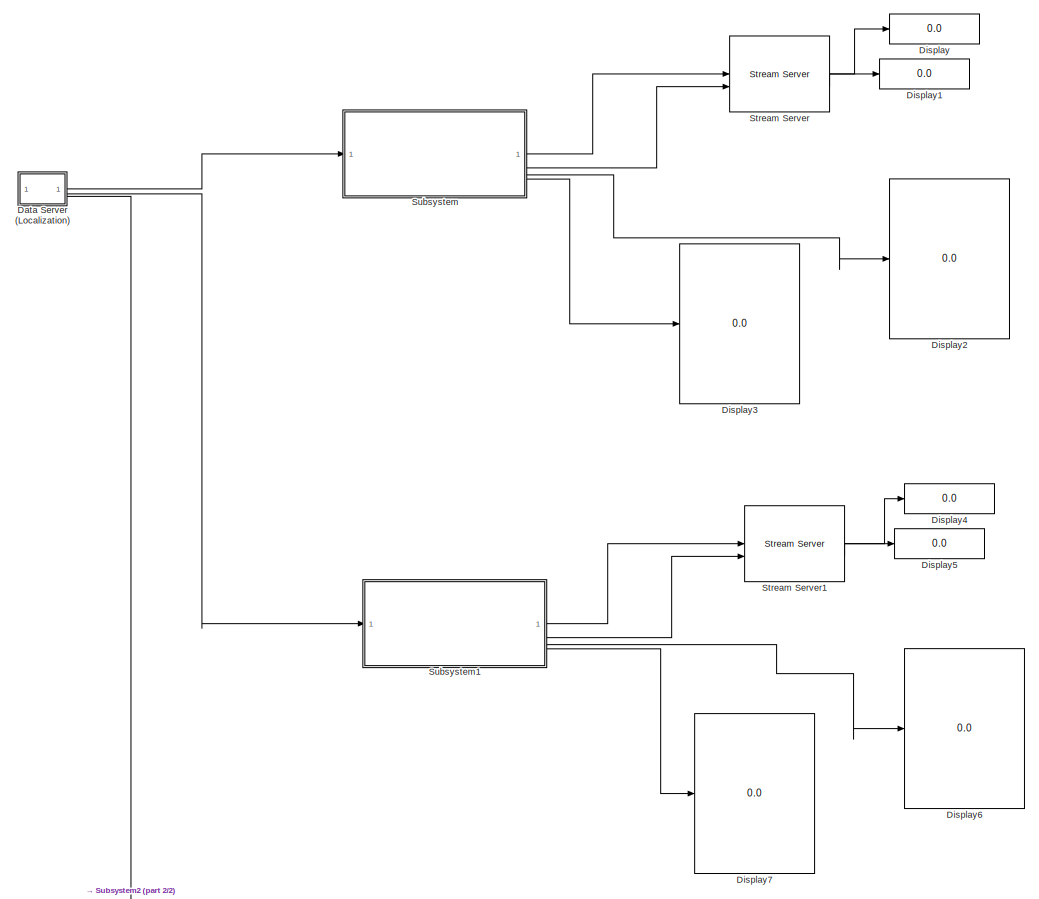
[diagram: root canvas - part 1/2, full width, top band]
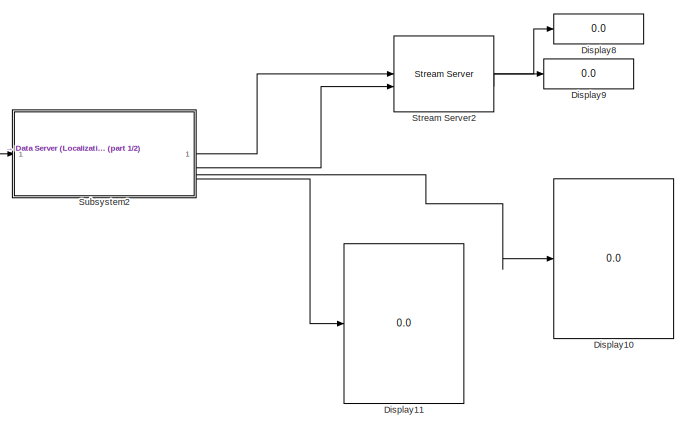
[diagram: root canvas - part 2/2, bottom right region]
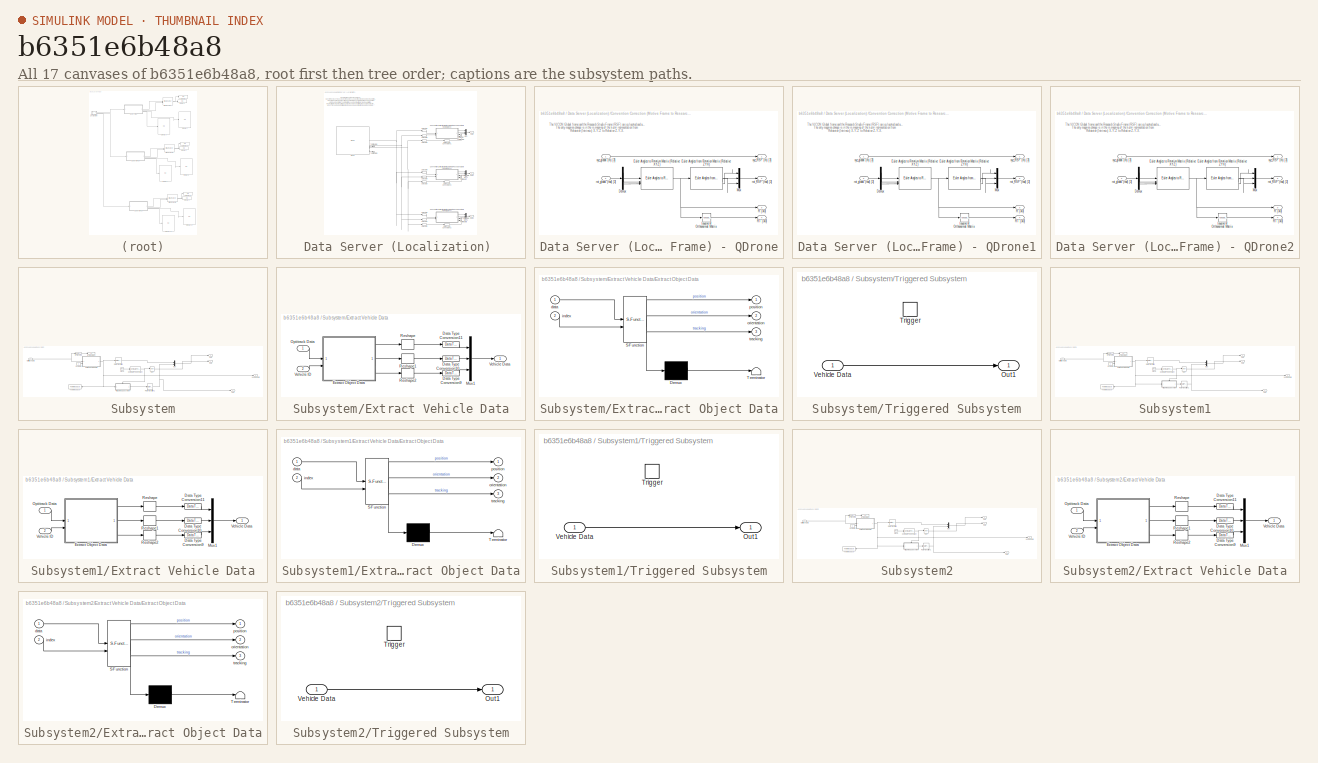
[diagram: thumbnail index - all 17 canvases of the model, root first then tree order]
MODEL slx_b6351e6b48a8
KIND model
CONFIG AbsTol = auto
CONFIG EnableMultiTasking = on
CONFIG FixedStep = 0.001
CONFIG InitFcn = %set_param('MS_FR/MISSION SERVER QDRONE POSITION CONTROL/Trajectory Enable', 'sw', '0' )\n%set_param('MS_FR/MISSION SERVER QDRONE POSITION CONTROL/Command Enable', 'sw', '0' )
CONFIG MaxStep = auto
CONFIG MinStep = auto
CONFIG RelTol = 1e-3
CONFIG SampleTimeConstraint = Unconstrained
CONFIG SolverName = ode2
CONFIG StartTime = 0.0
CONFIG StopTime = inf
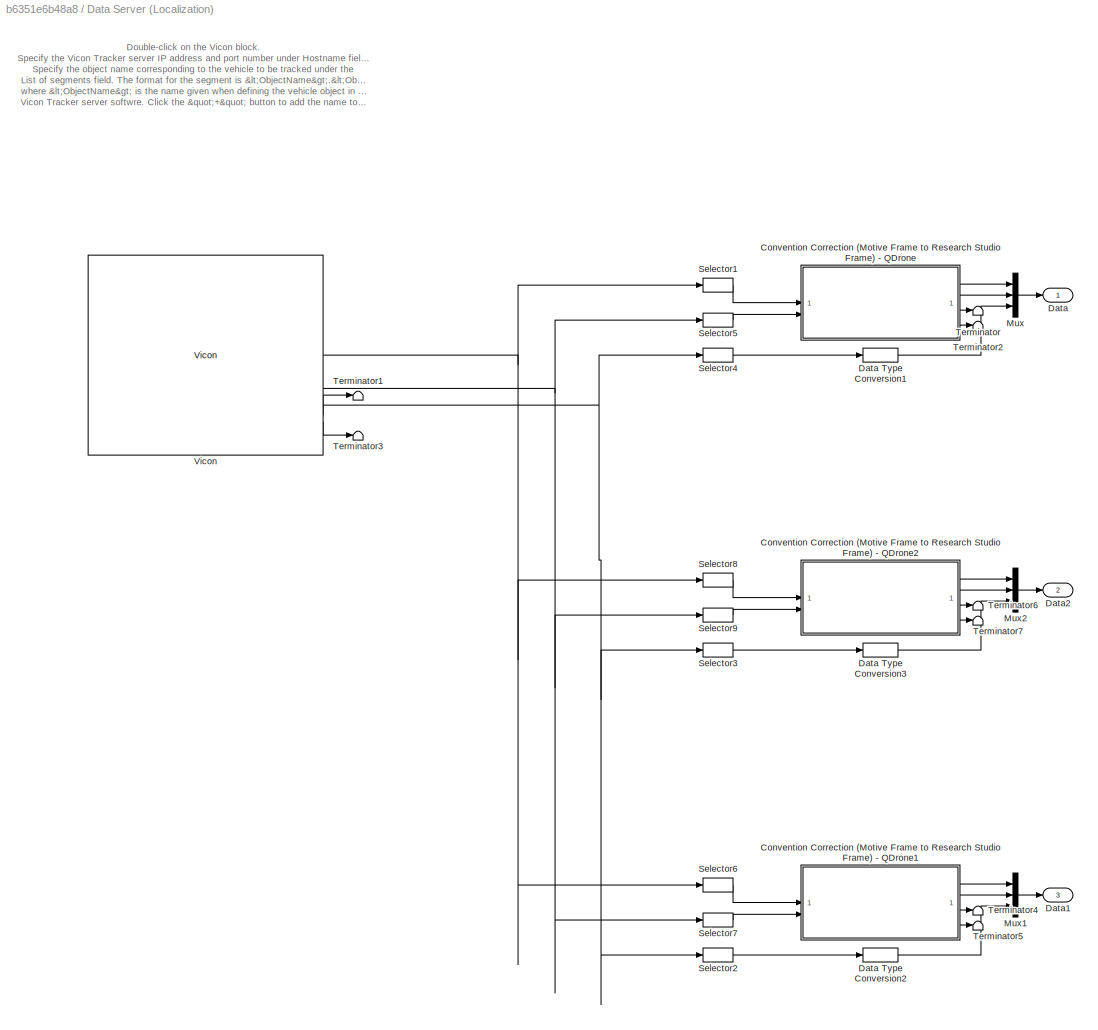
BLOCK [SubSystem] Data Server (Localization) 
  NameLocation = top
BLOCK [SubSystem] Data Server (Localization) /Convention Correction (Motive Frame to Research Studio Frame) - QDrone
  NameLocation = top
BLOCK [Demux] Data Server (Localization) /Convention Correction (Motive Frame to Research Studio Frame) - QDrone/Demux
  Outputs = 3
BLOCK [Reference] Data Server (Localization) /Convention Correction (Motive Frame to Research Studio Frame) - QDrone/Euler Angles from Rotation Matrix (Relative ZYX)  REF=quarc_library/Math Operations/Matrices/Euler Angles from
Rotation Matrix
  SourceBlock = quarc_library/Math Operations/Matrices/Euler Angles from\nRotation Matrix
  SourceProductName = QUARC Targets
  SourceType = Euler Angles from Rotation Matrix
BLOCK [Reference] Data Server (Localization) /Convention Correction (Motive Frame to Research Studio Frame) - QDrone/Euler Angles to Rotation Matrix (Relative XYZ)  REF=quarc_library/Math Operations/Matrices/Euler Angles to
Rotation Matrix
  SourceBlock = quarc_library/Math Operations/Matrices/Euler Angles to\nRotation Matrix
  SourceProductName = QUARC Targets
  SourceType = Euler Angles to Rotation Matrix
BLOCK [Math] Data Server (Localization) /Convention Correction (Motive Frame to Research Studio Frame) - QDrone/Inverse of Orthonormal Matrix
  Operator = transpose
  SignedPower = on
BLOCK [Mux] Data Server (Localization) /Convention Correction (Motive Frame to Research Studio Frame) - QDrone/Mux
  DisplayOption = bar
  Inputs = 3
BLOCK [Outport] Data Server (Localization) /Convention Correction (Motive Frame to Research Studio Frame) - QDrone/R [3x3]
  Port = 3
  VectorParamsAs1DForOutWhenUnconnected = off
BLOCK [Outport] Data Server (Localization) /Convention Correction (Motive Frame to Research Studio Frame) - QDrone/RT [3x3]
  Port = 4
  VectorParamsAs1DForOutWhenUnconnected = off
BLOCK [Outport] Data Server (Localization) /Convention Correction (Motive Frame to Research Studio Frame) - QDrone/rot_RSF (rad) [3]
  Port = 2
  VectorParamsAs1DForOutWhenUnconnected = off
BLOCK [Inport] Data Server (Localization) /Convention Correction (Motive Frame to Research Studio Frame) - QDrone/rot_global (rad) [3]
  Port = 2
BLOCK [Outport] Data Server (Localization) /Convention Correction (Motive Frame to Research Studio Frame) - QDrone/xyz_RSF (m) [3]
  VectorParamsAs1DForOutWhenUnconnected = off
BLOCK [Inport] Data Server (Localization) /Convention Correction (Motive Frame to Research Studio Frame) - QDrone/xyz_global (m) [3]
BLOCK [SubSystem] Data Server (Localization) /Convention Correction (Motive Frame to Research Studio Frame) - QDrone1
  NameLocation = top
BLOCK [Demux] Data Server (Localization) /Convention Correction (Motive Frame to Research Studio Frame) - QDrone1/Demux
  Outputs = 3
BLOCK [Reference] Data Server (Localization) /Convention Correction (Motive Frame to Research Studio Frame) - QDrone1/Euler Angles from Rotation Matrix (Relative ZYX)  REF=quarc_library/Math Operations/Matrices/Euler Angles from
Rotation Matrix
  SourceBlock = quarc_library/Math Operations/Matrices/Euler Angles from\nRotation Matrix
  SourceProductName = QUARC Targets
  SourceType = Euler Angles from Rotation Matrix
BLOCK [Reference] Data Server (Localization) /Convention Correction (Motive Frame to Research Studio Frame) - QDrone1/Euler Angles to Rotation Matrix (Relative XYZ)  REF=quarc_library/Math Operations/Matrices/Euler Angles to
Rotation Matrix
  SourceBlock = quarc_library/Math Operations/Matrices/Euler Angles to\nRotation Matrix
  SourceProductName = QUARC Targets
  SourceType = Euler Angles to Rotation Matrix
BLOCK [Math] Data Server (Localization) /Convention Correction (Motive Frame to Research Studio Frame) - QDrone1/Inverse of Orthonormal Matrix
  Operator = transpose
  SignedPower = on
BLOCK [Mux] Data Server (Localization) /Convention Correction (Motive Frame to Research Studio Frame) - QDrone1/Mux
  DisplayOption = bar
  Inputs = 3
BLOCK [Outport] Data Server (Localization) /Convention Correction (Motive Frame to Research Studio Frame) - QDrone1/R [3x3]
  Port = 3
  VectorParamsAs1DForOutWhenUnconnected = off
BLOCK [Outport] Data Server (Localization) /Convention Correction (Motive Frame to Research Studio Frame) - QDrone1/RT [3x3]
  Port = 4
  VectorParamsAs1DForOutWhenUnconnected = off
BLOCK [Outport] Data Server (Localization) /Convention Correction (Motive Frame to Research Studio Frame) - QDrone1/rot_RSF (rad) [3]
  Port = 2
  VectorParamsAs1DForOutWhenUnconnected = off
BLOCK [Inport] Data Server (Localization) /Convention Correction (Motive Frame to Research Studio Frame) - QDrone1/rot_global (rad) [3]
  Port = 2
BLOCK [Outport] Data Server (Localization) /Convention Correction (Motive Frame to Research Studio Frame) - QDrone1/xyz_RSF (m) [3]
  VectorParamsAs1DForOutWhenUnconnected = off
BLOCK [Inport] Data Server (Localization) /Convention Correction (Motive Frame to Research Studio Frame) - QDrone1/xyz_global (m) [3]
BLOCK [SubSystem] Data Server (Localization) /Convention Correction (Motive Frame to Research Studio Frame) - QDrone2
  NameLocation = top
BLOCK [Demux] Data Server (Localization) /Convention Correction (Motive Frame to Research Studio Frame) - QDrone2/Demux
  Outputs = 3
BLOCK [Reference] Data Server (Localization) /Convention Correction (Motive Frame to Research Studio Frame) - QDrone2/Euler Angles from Rotation Matrix (Relative ZYX)  REF=quarc_library/Math Operations/Matrices/Euler Angles from
Rotation Matrix
  SourceBlock = quarc_library/Math Operations/Matrices/Euler Angles from\nRotation Matrix
  SourceProductName = QUARC Targets
  SourceType = Euler Angles from Rotation Matrix
BLOCK [Reference] Data Server (Localization) /Convention Correction (Motive Frame to Research Studio Frame) - QDrone2/Euler Angles to Rotation Matrix (Relative XYZ)  REF=quarc_library/Math Operations/Matrices/Euler Angles to
Rotation Matrix
  SourceBlock = quarc_library/Math Operations/Matrices/Euler Angles to\nRotation Matrix
  SourceProductName = QUARC Targets
  SourceType = Euler Angles to Rotation Matrix
BLOCK [Math] Data Server (Localization) /Convention Correction (Motive Frame to Research Studio Frame) - QDrone2/Inverse of Orthonormal Matrix
  Operator = transpose
  SignedPower = on
BLOCK [Mux] Data Server (Localization) /Convention Correction (Motive Frame to Research Studio Frame) - QDrone2/Mux
  DisplayOption = bar
  Inputs = 3
BLOCK [Outport] Data Server (Localization) /Convention Correction (Motive Frame to Research Studio Frame) - QDrone2/R [3x3]
  Port = 3
  VectorParamsAs1DForOutWhenUnconnected = off
BLOCK [Outport] Data Server (Localization) /Convention Correction (Motive Frame to Research Studio Frame) - QDrone2/RT [3x3]
  Port = 4
  VectorParamsAs1DForOutWhenUnconnected = off
BLOCK [Outport] Data Server (Localization) /Convention Correction (Motive Frame to Research Studio Frame) - QDrone2/rot_RSF (rad) [3]
  Port = 2
  VectorParamsAs1DForOutWhenUnconnected = off
BLOCK [Inport] Data Server (Localization) /Convention Correction (Motive Frame to Research Studio Frame) - QDrone2/rot_global (rad) [3]
  Port = 2
BLOCK [Outport] Data Server (Localization) /Convention Correction (Motive Frame to Research Studio Frame) - QDrone2/xyz_RSF (m) [3]
  VectorParamsAs1DForOutWhenUnconnected = off
BLOCK [Inport] Data Server (Localization) /Convention Correction (Motive Frame to Research Studio Frame) - QDrone2/xyz_global (m) [3]
BLOCK [Outport] Data Server (Localization) /Data
  VectorParamsAs1DForOutWhenUnconnected = off
BLOCK [DataTypeConversion] Data Server (Localization) /Data Type Conversion1
  RndMeth = Floor
  SaturateOnIntegerOverflow = off
BLOCK [DataTypeConversion] Data Server (Localization) /Data Type Conversion2
  RndMeth = Floor
  SaturateOnIntegerOverflow = off
BLOCK [DataTypeConversion] Data Server (Localization) /Data Type Conversion3
  RndMeth = Floor
  SaturateOnIntegerOverflow = off
BLOCK [Outport] Data Server (Localization) /Data1
  Port = 3
  VectorParamsAs1DForOutWhenUnconnected = off
BLOCK [Outport] Data Server (Localization) /Data2
  Port = 2
  VectorParamsAs1DForOutWhenUnconnected = off
BLOCK [Mux] Data Server (Localization) /Mux
  DisplayOption = bar
  Inputs = 3
BLOCK [Mux] Data Server (Localization) /Mux1
  DisplayOption = bar
  Inputs = 3
BLOCK [Mux] Data Server (Localization) /Mux2
  DisplayOption = bar
  Inputs = 3
BLOCK [Selector] Data Server (Localization) /Selector1
  IndexOptions = Index vector (dialog)
  Indices = [1:3]
  InputPortWidth = 9
  OutputSizes = 1
BLOCK [Selector] Data Server (Localization) /Selector2
  IndexOptions = Index vector (dialog)
  Indices = [3]
  InputPortWidth = 3
  OutputSizes = 1
BLOCK [Selector] Data Server (Localization) /Selector3
  IndexOptions = Index vector (dialog)
  Indices = [2]
  InputPortWidth = 3
  OutputSizes = 1
BLOCK [Selector] Data Server (Localization) /Selector4
  IndexOptions = Index vector (dialog)
  Indices = [1]
  InputPortWidth = 3
  OutputSizes = 1
BLOCK [Selector] Data Server (Localization) /Selector5
  IndexOptions = Index vector (dialog)
  Indices = [1:3]
  InputPortWidth = 9
  OutputSizes = 1
BLOCK [Selector] Data Server (Localization) /Selector6
  IndexOptions = Index vector (dialog)
  Indices = [7:9]
  InputPortWidth = 9
  OutputSizes = 1
BLOCK [Selector] Data Server (Localization) /Selector7
  IndexOptions = Index vector (dialog)
  Indices = [7:9]
  InputPortWidth = 9
  OutputSizes = 1
BLOCK [Selector] Data Server (Localization) /Selector8
  IndexOptions = Index vector (dialog)
  Indices = [4:6]
  InputPortWidth = 9
  OutputSizes = 1
BLOCK [Selector] Data Server (Localization) /Selector9
  IndexOptions = Index vector (dialog)
  Indices = [4:6]
  InputPortWidth = 9
  OutputSizes = 1
BLOCK [Terminator] Data Server (Localization) /Terminator
BLOCK [Terminator] Data Server (Localization) /Terminator1
BLOCK [Terminator] Data Server (Localization) /Terminator2
BLOCK [Terminator] Data Server (Localization) /Terminator3
BLOCK [Terminator] Data Server (Localization) /Terminator4
BLOCK [Terminator] Data Server (Localization) /Terminator5
BLOCK [Terminator] Data Server (Localization) /Terminator6
BLOCK [Terminator] Data Server (Localization) /Terminator7
BLOCK [Reference] Data Server (Localization) /Vicon  REF=quarc_library/Devices/Third-Party/Vicon/Vicon
  SourceBlock = quarc_library/Devices/Third-Party/Vicon/Vicon
  SourceProductName = QUARC Targets
  SourceType = Vicon
BLOCK [Display] Display
  Decimation = 1
BLOCK [Display] Display1
  Decimation = 1
BLOCK [Display] Display10
  Decimation = 1
  Format = long
BLOCK [Display] Display11
  Decimation = 1
  Format = long
BLOCK [Display] Display2
  Decimation = 1
  Format = long
BLOCK [Display] Display3
  Decimation = 1
  Format = long
BLOCK [Display] Display4
  Decimation = 1
BLOCK [Display] Display5
  Decimation = 1
BLOCK [Display] Display6
  Decimation = 1
  Format = long
BLOCK [Display] Display7
  Decimation = 1
  Format = long
BLOCK [Display] Display8
  Decimation = 1
BLOCK [Display] Display9
  Decimation = 1
BLOCK [Reference] Stream Server  REF=quarc_library/Communications/Basic/Stream Server
  AttributesFormatString = "tcpip://192.168.0.5:18099"
  SourceBlock = quarc_library/Communications/Basic/Stream Server
  SourceProductName = QUARC Targets
  SourceType = Stream Server
BLOCK [Reference] Stream Server1  REF=quarc_library/Communications/Basic/Stream Server
  AttributesFormatString = "tcpip://192.168.0.5:18100"
  SourceBlock = quarc_library/Communications/Basic/Stream Server
  SourceProductName = QUARC Targets
  SourceType = Stream Server
BLOCK [Reference] Stream Server2  REF=quarc_library/Communications/Basic/Stream Server
  AttributesFormatString = "tcpip://192.168.0.5:18101"
  SourceBlock = quarc_library/Communications/Basic/Stream Server
  SourceProductName = QUARC Targets
  SourceType = Stream Server
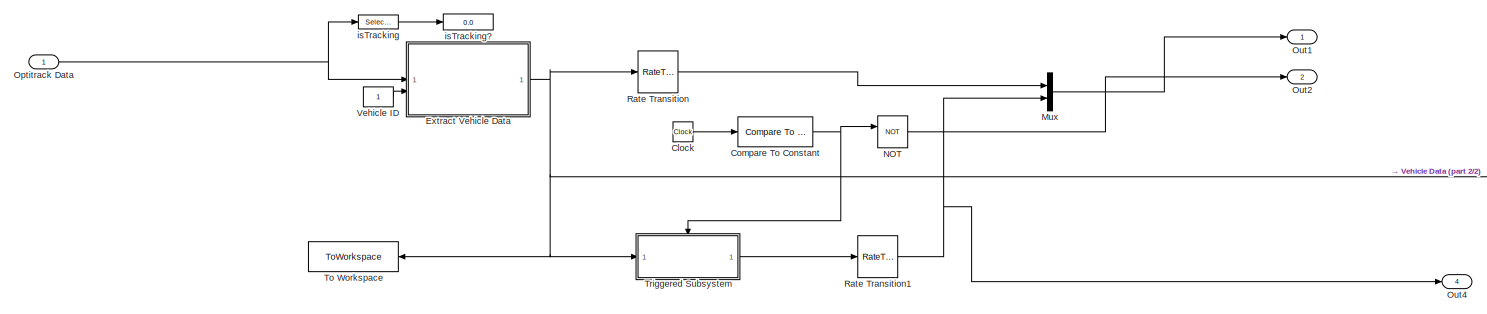
[diagram: Subsystem - part 1/2, most of the canvas]
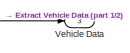
[diagram: Subsystem - part 2/2, middle right region]
BLOCK [SubSystem] Subsystem
BLOCK [Clock] Subsystem/Clock
BLOCK [Reference] Subsystem/Compare To Constant  REF=simulink/Logic and Bit
Operations/Compare
To Constant
  SourceBlock = simulink/Logic and Bit\nOperations/Compare\nTo Constant
  SourceType = Compare To Constant
BLOCK [SubSystem] Subsystem/Extract Vehicle Data
BLOCK [DataTypeConversion] Subsystem/Extract Vehicle Data/Data Type Conversion10
  RndMeth = Floor
  SaturateOnIntegerOverflow = off
BLOCK [DataTypeConversion] Subsystem/Extract Vehicle Data/Data Type Conversion11
  RndMeth = Floor
  SaturateOnIntegerOverflow = off
BLOCK [DataTypeConversion] Subsystem/Extract Vehicle Data/Data Type Conversion9
  RndMeth = Floor
  SaturateOnIntegerOverflow = off
BLOCK [SubSystem] Subsystem/Extract Vehicle Data/Extract Object Data
  ErrorFcn = Stateflow.Translate.translate
  PermitHierarchicalResolution = ExplicitOnly
  SFBlockType = MATLAB Function
  TreatAsAtomicUnit = on
BLOCK [Demux] Subsystem/Extract Vehicle Data/Extract Object Data/ Demux 
  Outputs = 1
BLOCK [S-Function] Subsystem/Extract Vehicle Data/Extract Object Data/ SFunction 
  EnableBusSupport = on
  FunctionName = sf_sfun
  PortCounts = [2 4]
  SFcnIsStateOwnerBlock = off
  SFunctionDeploymentMode = off
  Tag = Stateflow S-Function 1
BLOCK [Terminator] Subsystem/Extract Vehicle Data/Extract Object Data/ Terminator 
BLOCK [Inport] Subsystem/Extract Vehicle Data/Extract Object Data/data
BLOCK [Inport] Subsystem/Extract Vehicle Data/Extract Object Data/index
  Port = 2
BLOCK [Outport] Subsystem/Extract Vehicle Data/Extract Object Data/orientation
  Port = 2
  VectorParamsAs1DForOutWhenUnconnected = off
BLOCK [Outport] Subsystem/Extract Vehicle Data/Extract Object Data/position
  VectorParamsAs1DForOutWhenUnconnected = off
BLOCK [Outport] Subsystem/Extract Vehicle Data/Extract Object Data/tracking
  Port = 3
  VectorParamsAs1DForOutWhenUnconnected = off
BLOCK [Mux] Subsystem/Extract Vehicle Data/Mux1
  DisplayOption = bar
  Inputs = 3
BLOCK [Inport] Subsystem/Extract Vehicle Data/Optitrack Data
BLOCK [Reshape] Subsystem/Extract Vehicle Data/Reshape
BLOCK [Reshape] Subsystem/Extract Vehicle Data/Reshape1
BLOCK [Reshape] Subsystem/Extract Vehicle Data/Reshape2
BLOCK [Outport] Subsystem/Extract Vehicle Data/Vehicle Data
  VectorParamsAs1DForOutWhenUnconnected = off
BLOCK [Inport] Subsystem/Extract Vehicle Data/Vehicle ID
  Port = 2
BLOCK [Mux] Subsystem/Mux
  DisplayOption = bar
  Inputs = 2
BLOCK [Logic] Subsystem/NOT
  AllPortsSameDT = off
  IconShape = distinctive
  Operator = NOT
  OutDataTypeStr = boolean
BLOCK [Inport] Subsystem/Optitrack Data
BLOCK [Outport] Subsystem/Out1
BLOCK [Outport] Subsystem/Out2
  Port = 2
BLOCK [Outport] Subsystem/Out4
  Port = 4
BLOCK [RateTransition] Subsystem/Rate Transition
  OutPortSampleTime = qc_get_step_size*2
BLOCK [RateTransition] Subsystem/Rate Transition1
  OutPortSampleTime = qc_get_step_size*2
BLOCK [ToWorkspace] Subsystem/To Workspace
  FixptAsFi = on
  MaxDataPoints = inf
  NameLocation = top
  SampleTime = -1
  SaveFormat = Structure With Time
  VariableName = vicon_data1
BLOCK [SubSystem] Subsystem/Triggered Subsystem
  TreatAsAtomicUnit = on
BLOCK [Outport] Subsystem/Triggered Subsystem/Out1
BLOCK [TriggerPort] Subsystem/Triggered Subsystem/Trigger
  StatesWhenEnabling = held
  TriggerType = falling
  VariantControl = (inherit)
BLOCK [Inport] Subsystem/Triggered Subsystem/Vehicle Data
BLOCK [Outport] Subsystem/Vehicle Data
  Port = 3
BLOCK [Constant] Subsystem/Vehicle ID
BLOCK [Selector] Subsystem/isTracking
  IndexOptions = Index vector (dialog)
  Indices = [7]
  InputPortWidth = 7
  NameLocation = top
  OutputSizes = 1
BLOCK [Display] Subsystem/isTracking?
  Decimation = 1
  NameLocation = top
BLOCK [SubSystem] Subsystem1
BLOCK [Clock] Subsystem1/Clock
BLOCK [Reference] Subsystem1/Compare To Constant  REF=simulink/Logic and Bit
Operations/Compare
To Constant
  SourceBlock = simulink/Logic and Bit\nOperations/Compare\nTo Constant
  SourceType = Compare To Constant
BLOCK [SubSystem] Subsystem1/Extract Vehicle Data
BLOCK [DataTypeConversion] Subsystem1/Extract Vehicle Data/Data Type Conversion10
  RndMeth = Floor
  SaturateOnIntegerOverflow = off
BLOCK [DataTypeConversion] Subsystem1/Extract Vehicle Data/Data Type Conversion11
  RndMeth = Floor
  SaturateOnIntegerOverflow = off
BLOCK [DataTypeConversion] Subsystem1/Extract Vehicle Data/Data Type Conversion9
  RndMeth = Floor
  SaturateOnIntegerOverflow = off
BLOCK [SubSystem] Subsystem1/Extract Vehicle Data/Extract Object Data
  ErrorFcn = Stateflow.Translate.translate
  PermitHierarchicalResolution = ExplicitOnly
  SFBlockType = MATLAB Function
  TreatAsAtomicUnit = on
BLOCK [Demux] Subsystem1/Extract Vehicle Data/Extract Object Data/ Demux 
  Outputs = 1
BLOCK [S-Function] Subsystem1/Extract Vehicle Data/Extract Object Data/ SFunction 
  EnableBusSupport = on
  FunctionName = sf_sfun
  PortCounts = [2 4]
  SFcnIsStateOwnerBlock = off
  SFunctionDeploymentMode = off
  Tag = Stateflow S-Function 2
BLOCK [Terminator] Subsystem1/Extract Vehicle Data/Extract Object Data/ Terminator 
BLOCK [Inport] Subsystem1/Extract Vehicle Data/Extract Object Data/data
BLOCK [Inport] Subsystem1/Extract Vehicle Data/Extract Object Data/index
  Port = 2
BLOCK [Outport] Subsystem1/Extract Vehicle Data/Extract Object Data/orientation
  Port = 2
  VectorParamsAs1DForOutWhenUnconnected = off
BLOCK [Outport] Subsystem1/Extract Vehicle Data/Extract Object Data/position
  VectorParamsAs1DForOutWhenUnconnected = off
BLOCK [Outport] Subsystem1/Extract Vehicle Data/Extract Object Data/tracking
  Port = 3
  VectorParamsAs1DForOutWhenUnconnected = off
BLOCK [Mux] Subsystem1/Extract Vehicle Data/Mux1
  DisplayOption = bar
  Inputs = 3
BLOCK [Inport] Subsystem1/Extract Vehicle Data/Optitrack Data
BLOCK [Reshape] Subsystem1/Extract Vehicle Data/Reshape
BLOCK [Reshape] Subsystem1/Extract Vehicle Data/Reshape1
BLOCK [Reshape] Subsystem1/Extract Vehicle Data/Reshape2
BLOCK [Outport] Subsystem1/Extract Vehicle Data/Vehicle Data
  VectorParamsAs1DForOutWhenUnconnected = off
BLOCK [Inport] Subsystem1/Extract Vehicle Data/Vehicle ID
  Port = 2
BLOCK [Mux] Subsystem1/Mux
  DisplayOption = bar
  Inputs = 2
BLOCK [Logic] Subsystem1/NOT
  AllPortsSameDT = off
  IconShape = distinctive
  Operator = NOT
  OutDataTypeStr = boolean
BLOCK [Inport] Subsystem1/Optitrack Data
BLOCK [Outport] Subsystem1/Out1
BLOCK [Outport] Subsystem1/Out2
  Port = 2
BLOCK [Outport] Subsystem1/Out4
  Port = 4
BLOCK [RateTransition] Subsystem1/Rate Transition
  OutPortSampleTime = qc_get_step_size*2
BLOCK [RateTransition] Subsystem1/Rate Transition1
  OutPortSampleTime = qc_get_step_size*2
BLOCK [ToWorkspace] Subsystem1/To Workspace
  FixptAsFi = on
  MaxDataPoints = inf
  NameLocation = top
  SampleTime = -1
  SaveFormat = Structure With Time
  VariableName = vicon_data2
BLOCK [SubSystem] Subsystem1/Triggered Subsystem
  TreatAsAtomicUnit = on
BLOCK [Outport] Subsystem1/Triggered Subsystem/Out1
BLOCK [TriggerPort] Subsystem1/Triggered Subsystem/Trigger
  StatesWhenEnabling = held
  TriggerType = falling
  VariantControl = (inherit)
BLOCK [Inport] Subsystem1/Triggered Subsystem/Vehicle Data
BLOCK [Outport] Subsystem1/Vehicle Data
  Port = 3
BLOCK [Constant] Subsystem1/Vehicle ID
BLOCK [Selector] Subsystem1/isTracking
  IndexOptions = Index vector (dialog)
  Indices = [7]
  InputPortWidth = 7
  NameLocation = top
  OutputSizes = 1
BLOCK [Display] Subsystem1/isTracking?
  Decimation = 1
  NameLocation = top
BLOCK [SubSystem] Subsystem2
BLOCK [Clock] Subsystem2/Clock
BLOCK [Reference] Subsystem2/Compare To Constant  REF=simulink/Logic and Bit
Operations/Compare
To Constant
  SourceBlock = simulink/Logic and Bit\nOperations/Compare\nTo Constant
  SourceType = Compare To Constant
BLOCK [SubSystem] Subsystem2/Extract Vehicle Data
BLOCK [DataTypeConversion] Subsystem2/Extract Vehicle Data/Data Type Conversion10
  RndMeth = Floor
  SaturateOnIntegerOverflow = off
BLOCK [DataTypeConversion] Subsystem2/Extract Vehicle Data/Data Type Conversion11
  RndMeth = Floor
  SaturateOnIntegerOverflow = off
BLOCK [DataTypeConversion] Subsystem2/Extract Vehicle Data/Data Type Conversion9
  RndMeth = Floor
  SaturateOnIntegerOverflow = off
BLOCK [SubSystem] Subsystem2/Extract Vehicle Data/Extract Object Data
  ErrorFcn = Stateflow.Translate.translate
  PermitHierarchicalResolution = ExplicitOnly
  SFBlockType = MATLAB Function
  TreatAsAtomicUnit = on
BLOCK [Demux] Subsystem2/Extract Vehicle Data/Extract Object Data/ Demux 
  Outputs = 1
BLOCK [S-Function] Subsystem2/Extract Vehicle Data/Extract Object Data/ SFunction 
  EnableBusSupport = on
  FunctionName = sf_sfun
  PortCounts = [2 4]
  SFcnIsStateOwnerBlock = off
  SFunctionDeploymentMode = off
  Tag = Stateflow S-Function 3
BLOCK [Terminator] Subsystem2/Extract Vehicle Data/Extract Object Data/ Terminator 
BLOCK [Inport] Subsystem2/Extract Vehicle Data/Extract Object Data/data
BLOCK [Inport] Subsystem2/Extract Vehicle Data/Extract Object Data/index
  Port = 2
BLOCK [Outport] Subsystem2/Extract Vehicle Data/Extract Object Data/orientation
  Port = 2
  VectorParamsAs1DForOutWhenUnconnected = off
BLOCK [Outport] Subsystem2/Extract Vehicle Data/Extract Object Data/position
  VectorParamsAs1DForOutWhenUnconnected = off
BLOCK [Outport] Subsystem2/Extract Vehicle Data/Extract Object Data/tracking
  Port = 3
  VectorParamsAs1DForOutWhenUnconnected = off
BLOCK [Mux] Subsystem2/Extract Vehicle Data/Mux1
  DisplayOption = bar
  Inputs = 3
BLOCK [Inport] Subsystem2/Extract Vehicle Data/Optitrack Data
BLOCK [Reshape] Subsystem2/Extract Vehicle Data/Reshape
BLOCK [Reshape] Subsystem2/Extract Vehicle Data/Reshape1
BLOCK [Reshape] Subsystem2/Extract Vehicle Data/Reshape2
BLOCK [Outport] Subsystem2/Extract Vehicle Data/Vehicle Data
  VectorParamsAs1DForOutWhenUnconnected = off
BLOCK [Inport] Subsystem2/Extract Vehicle Data/Vehicle ID
  Port = 2
BLOCK [Mux] Subsystem2/Mux
  DisplayOption = bar
  Inputs = 2
BLOCK [Logic] Subsystem2/NOT
  AllPortsSameDT = off
  IconShape = distinctive
  Operator = NOT
  OutDataTypeStr = boolean
BLOCK [Inport] Subsystem2/Optitrack Data
BLOCK [Outport] Subsystem2/Out1
BLOCK [Outport] Subsystem2/Out2
  Port = 2
BLOCK [Outport] Subsystem2/Out4
  Port = 4
BLOCK [RateTransition] Subsystem2/Rate Transition
  OutPortSampleTime = qc_get_step_size*2
BLOCK [RateTransition] Subsystem2/Rate Transition1
  OutPortSampleTime = qc_get_step_size*2
BLOCK [ToWorkspace] Subsystem2/To Workspace
  FixptAsFi = on
  MaxDataPoints = inf
  NameLocation = top
  SampleTime = -1
  SaveFormat = Structure With Time
  VariableName = vicon_data3
BLOCK [SubSystem] Subsystem2/Triggered Subsystem
  TreatAsAtomicUnit = on
BLOCK [Outport] Subsystem2/Triggered Subsystem/Out1
BLOCK [TriggerPort] Subsystem2/Triggered Subsystem/Trigger
  StatesWhenEnabling = held
  TriggerType = falling
  VariantControl = (inherit)
BLOCK [Inport] Subsystem2/Triggered Subsystem/Vehicle Data
BLOCK [Outport] Subsystem2/Vehicle Data
  Port = 3
BLOCK [Constant] Subsystem2/Vehicle ID
BLOCK [Selector] Subsystem2/isTracking
  IndexOptions = Index vector (dialog)
  Indices = [7]
  InputPortWidth = 7
  NameLocation = top
  OutputSizes = 1
BLOCK [Display] Subsystem2/isTracking?
  Decimation = 1
  NameLocation = top
ANNOTATION Data Server (Localization) : Double-click on the Vicon block. Specify the Vicon Tracker server IP address and port number under Hostname field. Specify the object name corresponding to the vehicle to be tracked under the List of segments field. The format for the segment is <ObjectName>.<ObjectName> where <ObjectName> is the name given when defining the vehicle object in the Vicon Tracker server softwre. Click the "+" button ...<+336ch>
ANNOTATION Data Server (Localization) /Convention Correction (Motive Frame to Research Studio Frame) - QDrone: The VICON Global frame and the Research Studio Frame (RSF) are co-located and aligned. The only mapping change is in the re-mapping of the Euler representation from Relateive (Intrinsic) X-Y-Z to Relative Z-Y-X.
ANNOTATION Data Server (Localization) /Convention Correction (Motive Frame to Research Studio Frame) - QDrone1: The VICON Global frame and the Research Studio Frame (RSF) are co-located and aligned. The only mapping change is in the re-mapping of the Euler representation from Relateive (Intrinsic) X-Y-Z to Relative Z-Y-X.
ANNOTATION Data Server (Localization) /Convention Correction (Motive Frame to Research Studio Frame) - QDrone2: The VICON Global frame and the Research Studio Frame (RSF) are co-located and aligned. The only mapping change is in the re-mapping of the Euler representation from Relateive (Intrinsic) X-Y-Z to Relative Z-Y-X.
LINE Data Server (Localization) /Convention Correction (Motive Frame to Research Studio Frame) - QDrone/Demux:1 -> Data Server (Localization) /Convention Correction (Motive Frame to Research Studio Frame) - QDrone/Euler Angles to Rotation Matrix (Relative XYZ):1
LINE Data Server (Localization) /Convention Correction (Motive Frame to Research Studio Frame) - QDrone/Demux:2 -> Data Server (Localization) /Convention Correction (Motive Frame to Research Studio Frame) - QDrone/Euler Angles to Rotation Matrix (Relative XYZ):2
LINE Data Server (Localization) /Convention Correction (Motive Frame to Research Studio Frame) - QDrone/Demux:3 -> Data Server (Localization) /Convention Correction (Motive Frame to Research Studio Frame) - QDrone/Euler Angles to Rotation Matrix (Relative XYZ):3
LINE Data Server (Localization) /Convention Correction (Motive Frame to Research Studio Frame) - QDrone/Euler Angles from Rotation Matrix (Relative ZYX):1 -> Data Server (Localization) /Convention Correction (Motive Frame to Research Studio Frame) - QDrone/Mux:3
LINE Data Server (Localization) /Convention Correction (Motive Frame to Research Studio Frame) - QDrone/Euler Angles from Rotation Matrix (Relative ZYX):2 -> Data Server (Localization) /Convention Correction (Motive Frame to Research Studio Frame) - QDrone/Mux:2
LINE Data Server (Localization) /Convention Correction (Motive Frame to Research Studio Frame) - QDrone/Euler Angles from Rotation Matrix (Relative ZYX):3 -> Data Server (Localization) /Convention Correction (Motive Frame to Research Studio Frame) - QDrone/Mux:1
NET Data Server (Localization) /Convention Correction (Motive Frame to Research Studio Frame) - QDrone/Euler Angles to Rotation Matrix (Relative XYZ):1 -> Data Server (Localization) /Convention Correction (Motive Frame to Research Studio Frame) - QDrone/Euler Angles from Rotation Matrix (Relative ZYX):1, Data Server (Localization) /Convention Correction (Motive Frame to Research Studio Frame) - QDrone/Inverse of Orthonormal Matrix:1, Data Server (Localization) /Convention Correction (Motive Frame to Research Studio Frame) - QDrone/R [3x3]:1
LINE Data Server (Localization) /Convention Correction (Motive Frame to Research Studio Frame) - QDrone/Inverse of Orthonormal Matrix:1 -> Data Server (Localization) /Convention Correction (Motive Frame to Research Studio Frame) - QDrone/RT [3x3]:1
LINE Data Server (Localization) /Convention Correction (Motive Frame to Research Studio Frame) - QDrone/Mux:1 -> Data Server (Localization) /Convention Correction (Motive Frame to Research Studio Frame) - QDrone/rot_RSF (rad) [3]:1
LINE Data Server (Localization) /Convention Correction (Motive Frame to Research Studio Frame) - QDrone/rot_global (rad) [3]:1 -> Data Server (Localization) /Convention Correction (Motive Frame to Research Studio Frame) - QDrone/Demux:1
LINE Data Server (Localization) /Convention Correction (Motive Frame to Research Studio Frame) - QDrone/xyz_global (m) [3]:1 -> Data Server (Localization) /Convention Correction (Motive Frame to Research Studio Frame) - QDrone/xyz_RSF (m) [3]:1
LINE Data Server (Localization) /Convention Correction (Motive Frame to Research Studio Frame) - QDrone1/Demux:1 -> Data Server (Localization) /Convention Correction (Motive Frame to Research Studio Frame) - QDrone1/Euler Angles to Rotation Matrix (Relative XYZ):1
LINE Data Server (Localization) /Convention Correction (Motive Frame to Research Studio Frame) - QDrone1/Demux:2 -> Data Server (Localization) /Convention Correction (Motive Frame to Research Studio Frame) - QDrone1/Euler Angles to Rotation Matrix (Relative XYZ):2
LINE Data Server (Localization) /Convention Correction (Motive Frame to Research Studio Frame) - QDrone1/Demux:3 -> Data Server (Localization) /Convention Correction (Motive Frame to Research Studio Frame) - QDrone1/Euler Angles to Rotation Matrix (Relative XYZ):3
LINE Data Server (Localization) /Convention Correction (Motive Frame to Research Studio Frame) - QDrone1/Euler Angles from Rotation Matrix (Relative ZYX):1 -> Data Server (Localization) /Convention Correction (Motive Frame to Research Studio Frame) - QDrone1/Mux:3
LINE Data Server (Localization) /Convention Correction (Motive Frame to Research Studio Frame) - QDrone1/Euler Angles from Rotation Matrix (Relative ZYX):2 -> Data Server (Localization) /Convention Correction (Motive Frame to Research Studio Frame) - QDrone1/Mux:2
LINE Data Server (Localization) /Convention Correction (Motive Frame to Research Studio Frame) - QDrone1/Euler Angles from Rotation Matrix (Relative ZYX):3 -> Data Server (Localization) /Convention Correction (Motive Frame to Research Studio Frame) - QDrone1/Mux:1
NET Data Server (Localization) /Convention Correction (Motive Frame to Research Studio Frame) - QDrone1/Euler Angles to Rotation Matrix (Relative XYZ):1 -> Data Server (Localization) /Convention Correction (Motive Frame to Research Studio Frame) - QDrone1/Euler Angles from Rotation Matrix (Relative ZYX):1, Data Server (Localization) /Convention Correction (Motive Frame to Research Studio Frame) - QDrone1/Inverse of Orthonormal Matrix:1, Data Server (Localization) /Convention Correction (Motive Frame to Research Studio Frame) - QDrone1/R [3x3]:1
LINE Data Server (Localization) /Convention Correction (Motive Frame to Research Studio Frame) - QDrone1/Inverse of Orthonormal Matrix:1 -> Data Server (Localization) /Convention Correction (Motive Frame to Research Studio Frame) - QDrone1/RT [3x3]:1
LINE Data Server (Localization) /Convention Correction (Motive Frame to Research Studio Frame) - QDrone1/Mux:1 -> Data Server (Localization) /Convention Correction (Motive Frame to Research Studio Frame) - QDrone1/rot_RSF (rad) [3]:1
LINE Data Server (Localization) /Convention Correction (Motive Frame to Research Studio Frame) - QDrone1/rot_global (rad) [3]:1 -> Data Server (Localization) /Convention Correction (Motive Frame to Research Studio Frame) - QDrone1/Demux:1
LINE Data Server (Localization) /Convention Correction (Motive Frame to Research Studio Frame) - QDrone1/xyz_global (m) [3]:1 -> Data Server (Localization) /Convention Correction (Motive Frame to Research Studio Frame) - QDrone1/xyz_RSF (m) [3]:1
LINE Data Server (Localization) /Convention Correction (Motive Frame to Research Studio Frame) - QDrone1:1 -> Data Server (Localization) /Mux1:1
LINE Data Server (Localization) /Convention Correction (Motive Frame to Research Studio Frame) - QDrone1:2 -> Data Server (Localization) /Mux1:2
LINE Data Server (Localization) /Convention Correction (Motive Frame to Research Studio Frame) - QDrone1:3 -> Data Server (Localization) /Terminator4:1
LINE Data Server (Localization) /Convention Correction (Motive Frame to Research Studio Frame) - QDrone1:4 -> Data Server (Localization) /Terminator5:1
LINE Data Server (Localization) /Convention Correction (Motive Frame to Research Studio Frame) - QDrone2/Demux:1 -> Data Server (Localization) /Convention Correction (Motive Frame to Research Studio Frame) - QDrone2/Euler Angles to Rotation Matrix (Relative XYZ):1
LINE Data Server (Localization) /Convention Correction (Motive Frame to Research Studio Frame) - QDrone2/Demux:2 -> Data Server (Localization) /Convention Correction (Motive Frame to Research Studio Frame) - QDrone2/Euler Angles to Rotation Matrix (Relative XYZ):2
LINE Data Server (Localization) /Convention Correction (Motive Frame to Research Studio Frame) - QDrone2/Demux:3 -> Data Server (Localization) /Convention Correction (Motive Frame to Research Studio Frame) - QDrone2/Euler Angles to Rotation Matrix (Relative XYZ):3
LINE Data Server (Localization) /Convention Correction (Motive Frame to Research Studio Frame) - QDrone2/Euler Angles from Rotation Matrix (Relative ZYX):1 -> Data Server (Localization) /Convention Correction (Motive Frame to Research Studio Frame) - QDrone2/Mux:3
LINE Data Server (Localization) /Convention Correction (Motive Frame to Research Studio Frame) - QDrone2/Euler Angles from Rotation Matrix (Relative ZYX):2 -> Data Server (Localization) /Convention Correction (Motive Frame to Research Studio Frame) - QDrone2/Mux:2
LINE Data Server (Localization) /Convention Correction (Motive Frame to Research Studio Frame) - QDrone2/Euler Angles from Rotation Matrix (Relative ZYX):3 -> Data Server (Localization) /Convention Correction (Motive Frame to Research Studio Frame) - QDrone2/Mux:1
NET Data Server (Localization) /Convention Correction (Motive Frame to Research Studio Frame) - QDrone2/Euler Angles to Rotation Matrix (Relative XYZ):1 -> Data Server (Localization) /Convention Correction (Motive Frame to Research Studio Frame) - QDrone2/Euler Angles from Rotation Matrix (Relative ZYX):1, Data Server (Localization) /Convention Correction (Motive Frame to Research Studio Frame) - QDrone2/Inverse of Orthonormal Matrix:1, Data Server (Localization) /Convention Correction (Motive Frame to Research Studio Frame) - QDrone2/R [3x3]:1
LINE Data Server (Localization) /Convention Correction (Motive Frame to Research Studio Frame) - QDrone2/Inverse of Orthonormal Matrix:1 -> Data Server (Localization) /Convention Correction (Motive Frame to Research Studio Frame) - QDrone2/RT [3x3]:1
LINE Data Server (Localization) /Convention Correction (Motive Frame to Research Studio Frame) - QDrone2/Mux:1 -> Data Server (Localization) /Convention Correction (Motive Frame to Research Studio Frame) - QDrone2/rot_RSF (rad) [3]:1
LINE Data Server (Localization) /Convention Correction (Motive Frame to Research Studio Frame) - QDrone2/rot_global (rad) [3]:1 -> Data Server (Localization) /Convention Correction (Motive Frame to Research Studio Frame) - QDrone2/Demux:1
LINE Data Server (Localization) /Convention Correction (Motive Frame to Research Studio Frame) - QDrone2/xyz_global (m) [3]:1 -> Data Server (Localization) /Convention Correction (Motive Frame to Research Studio Frame) - QDrone2/xyz_RSF (m) [3]:1
LINE Data Server (Localization) /Convention Correction (Motive Frame to Research Studio Frame) - QDrone2:1 -> Data Server (Localization) /Mux2:1
LINE Data Server (Localization) /Convention Correction (Motive Frame to Research Studio Frame) - QDrone2:2 -> Data Server (Localization) /Mux2:2
LINE Data Server (Localization) /Convention Correction (Motive Frame to Research Studio Frame) - QDrone2:3 -> Data Server (Localization) /Terminator6:1
LINE Data Server (Localization) /Convention Correction (Motive Frame to Research Studio Frame) - QDrone2:4 -> Data Server (Localization) /Terminator7:1
LINE Data Server (Localization) /Convention Correction (Motive Frame to Research Studio Frame) - QDrone:1 -> Data Server (Localization) /Mux:1
LINE Data Server (Localization) /Convention Correction (Motive Frame to Research Studio Frame) - QDrone:2 -> Data Server (Localization) /Mux:2
LINE Data Server (Localization) /Convention Correction (Motive Frame to Research Studio Frame) - QDrone:3 -> Data Server (Localization) /Terminator:1
LINE Data Server (Localization) /Convention Correction (Motive Frame to Research Studio Frame) - QDrone:4 -> Data Server (Localization) /Terminator2:1
LINE Data Server (Localization) /Data Type Conversion1:1 -> Data Server (Localization) /Mux:3
LINE Data Server (Localization) /Data Type Conversion2:1 -> Data Server (Localization) /Mux1:3
LINE Data Server (Localization) /Data Type Conversion3:1 -> Data Server (Localization) /Mux2:3
LINE Data Server (Localization) /Mux1:1 -> Data Server (Localization) /Data1:1
LINE Data Server (Localization) /Mux2:1 -> Data Server (Localization) /Data2:1
LINE Data Server (Localization) /Mux:1 -> Data Server (Localization) /Data:1
LINE Data Server (Localization) /Selector1:1 -> Data Server (Localization) /Convention Correction (Motive Frame to Research Studio Frame) - QDrone:1
LINE Data Server (Localization) /Selector2:1 -> Data Server (Localization) /Data Type Conversion2:1
LINE Data Server (Localization) /Selector3:1 -> Data Server (Localization) /Data Type Conversion3:1
LINE Data Server (Localization) /Selector4:1 -> Data Server (Localization) /Data Type Conversion1:1
LINE Data Server (Localization) /Selector5:1 -> Data Server (Localization) /Convention Correction (Motive Frame to Research Studio Frame) - QDrone:2
LINE Data Server (Localization) /Selector6:1 -> Data Server (Localization) /Convention Correction (Motive Frame to Research Studio Frame) - QDrone1:1
LINE Data Server (Localization) /Selector7:1 -> Data Server (Localization) /Convention Correction (Motive Frame to Research Studio Frame) - QDrone1:2
LINE Data Server (Localization) /Selector8:1 -> Data Server (Localization) /Convention Correction (Motive Frame to Research Studio Frame) - QDrone2:1
LINE Data Server (Localization) /Selector9:1 -> Data Server (Localization) /Convention Correction (Motive Frame to Research Studio Frame) - QDrone2:2
NET Data Server (Localization) /Vicon:1 -> Data Server (Localization) /Selector1:1, Data Server (Localization) /Selector6:1, Data Server (Localization) /Selector8:1
NET Data Server (Localization) /Vicon:2 -> Data Server (Localization) /Selector5:1, Data Server (Localization) /Selector7:1, Data Server (Localization) /Selector9:1
NET Data Server (Localization) /Vicon:3 -> Data Server (Localization) /Selector2:1, Data Server (Localization) /Selector3:1, Data Server (Localization) /Selector4:1
LINE Data Server (Localization) /Vicon:4 -> Data Server (Localization) /Terminator1:1
LINE Data Server (Localization) /Vicon:5 -> Data Server (Localization) /Terminator3:1
LINE Data Server (Localization) :1 -> Subsystem:1
LINE Data Server (Localization) :2 -> Subsystem1:1
LINE Data Server (Localization) :3 -> Subsystem2:1
LINE Stream Server1:1 -> Display4:1
LINE Stream Server1:2 -> Display5:1
LINE Stream Server2:1 -> Display8:1
LINE Stream Server2:2 -> Display9:1
LINE Stream Server:1 -> Display:1
LINE Stream Server:2 -> Display1:1
LINE Subsystem/Clock:1 -> Subsystem/Compare To Constant:1
NET Subsystem/Compare To Constant:1 -> Subsystem/NOT:1, Subsystem/Triggered Subsystem:trigger
LINE Subsystem/Extract Vehicle Data/Data Type Conversion10:1 -> Subsystem/Extract Vehicle Data/Mux1:2
LINE Subsystem/Extract Vehicle Data/Data Type Conversion11:1 -> Subsystem/Extract Vehicle Data/Mux1:1
LINE Subsystem/Extract Vehicle Data/Data Type Conversion9:1 -> Subsystem/Extract Vehicle Data/Mux1:3
LINE Subsystem/Extract Vehicle Data/Extract Object Data:1 -> Subsystem/Extract Vehicle Data/Reshape:1
LINE Subsystem/Extract Vehicle Data/Extract Object Data:2 -> Subsystem/Extract Vehicle Data/Reshape1:1
LINE Subsystem/Extract Vehicle Data/Extract Object Data:3 -> Subsystem/Extract Vehicle Data/Reshape2:1
LINE Subsystem/Extract Vehicle Data/Mux1:1 -> Subsystem/Extract Vehicle Data/Vehicle Data:1
LINE Subsystem/Extract Vehicle Data/Optitrack Data:1 -> Subsystem/Extract Vehicle Data/Extract Object Data:1
LINE Subsystem/Extract Vehicle Data/Reshape1:1 -> Subsystem/Extract Vehicle Data/Data Type Conversion10:1
LINE Subsystem/Extract Vehicle Data/Reshape2:1 -> Subsystem/Extract Vehicle Data/Data Type Conversion9:1
LINE Subsystem/Extract Vehicle Data/Reshape:1 -> Subsystem/Extract Vehicle Data/Data Type Conversion11:1
LINE Subsystem/Extract Vehicle Data/Vehicle ID:1 -> Subsystem/Extract Vehicle Data/Extract Object Data:2
NET Subsystem/Extract Vehicle Data:1 -> Subsystem/Rate Transition:1, Subsystem/To Workspace:1, Subsystem/Triggered Subsystem:1, Subsystem/Vehicle Data:1
LINE Subsystem/Mux:1 -> Subsystem/Out1:1
LINE Subsystem/NOT:1 -> Subsystem/Out2:1
NET Subsystem/Optitrack Data:1 -> Subsystem/Extract Vehicle Data:1, Subsystem/isTracking:1
NET Subsystem/Rate Transition1:1 -> Subsystem/Mux:2, Subsystem/Out4:1
LINE Subsystem/Rate Transition:1 -> Subsystem/Mux:1
LINE Subsystem/Triggered Subsystem/Vehicle Data:1 -> Subsystem/Triggered Subsystem/Out1:1
LINE Subsystem/Triggered Subsystem:1 -> Subsystem/Rate Transition1:1
LINE Subsystem/Vehicle ID:1 -> Subsystem/Extract Vehicle Data:2
LINE Subsystem/isTracking:1 -> Subsystem/isTracking?:1
LINE Subsystem1/Clock:1 -> Subsystem1/Compare To Constant:1
NET Subsystem1/Compare To Constant:1 -> Subsystem1/NOT:1, Subsystem1/Triggered Subsystem:trigger
LINE Subsystem1/Extract Vehicle Data/Data Type Conversion10:1 -> Subsystem1/Extract Vehicle Data/Mux1:2
LINE Subsystem1/Extract Vehicle Data/Data Type Conversion11:1 -> Subsystem1/Extract Vehicle Data/Mux1:1
LINE Subsystem1/Extract Vehicle Data/Data Type Conversion9:1 -> Subsystem1/Extract Vehicle Data/Mux1:3
LINE Subsystem1/Extract Vehicle Data/Extract Object Data:1 -> Subsystem1/Extract Vehicle Data/Reshape:1
LINE Subsystem1/Extract Vehicle Data/Extract Object Data:2 -> Subsystem1/Extract Vehicle Data/Reshape1:1
LINE Subsystem1/Extract Vehicle Data/Extract Object Data:3 -> Subsystem1/Extract Vehicle Data/Reshape2:1
LINE Subsystem1/Extract Vehicle Data/Mux1:1 -> Subsystem1/Extract Vehicle Data/Vehicle Data:1
LINE Subsystem1/Extract Vehicle Data/Optitrack Data:1 -> Subsystem1/Extract Vehicle Data/Extract Object Data:1
LINE Subsystem1/Extract Vehicle Data/Reshape1:1 -> Subsystem1/Extract Vehicle Data/Data Type Conversion10:1
LINE Subsystem1/Extract Vehicle Data/Reshape2:1 -> Subsystem1/Extract Vehicle Data/Data Type Conversion9:1
LINE Subsystem1/Extract Vehicle Data/Reshape:1 -> Subsystem1/Extract Vehicle Data/Data Type Conversion11:1
LINE Subsystem1/Extract Vehicle Data/Vehicle ID:1 -> Subsystem1/Extract Vehicle Data/Extract Object Data:2
NET Subsystem1/Extract Vehicle Data:1 -> Subsystem1/Rate Transition:1, Subsystem1/To Workspace:1, Subsystem1/Triggered Subsystem:1, Subsystem1/Vehicle Data:1
LINE Subsystem1/Mux:1 -> Subsystem1/Out1:1
LINE Subsystem1/NOT:1 -> Subsystem1/Out2:1
NET Subsystem1/Optitrack Data:1 -> Subsystem1/Extract Vehicle Data:1, Subsystem1/isTracking:1
NET Subsystem1/Rate Transition1:1 -> Subsystem1/Mux:2, Subsystem1/Out4:1
LINE Subsystem1/Rate Transition:1 -> Subsystem1/Mux:1
LINE Subsystem1/Triggered Subsystem/Vehicle Data:1 -> Subsystem1/Triggered Subsystem/Out1:1
LINE Subsystem1/Triggered Subsystem:1 -> Subsystem1/Rate Transition1:1
LINE Subsystem1/Vehicle ID:1 -> Subsystem1/Extract Vehicle Data:2
LINE Subsystem1/isTracking:1 -> Subsystem1/isTracking?:1
LINE Subsystem1:1 -> Stream Server1:1
LINE Subsystem1:2 -> Stream Server1:2
LINE Subsystem1:3 -> Display6:1
LINE Subsystem1:4 -> Display7:1
LINE Subsystem2/Clock:1 -> Subsystem2/Compare To Constant:1
NET Subsystem2/Compare To Constant:1 -> Subsystem2/NOT:1, Subsystem2/Triggered Subsystem:trigger
LINE Subsystem2/Extract Vehicle Data/Data Type Conversion10:1 -> Subsystem2/Extract Vehicle Data/Mux1:2
LINE Subsystem2/Extract Vehicle Data/Data Type Conversion11:1 -> Subsystem2/Extract Vehicle Data/Mux1:1
LINE Subsystem2/Extract Vehicle Data/Data Type Conversion9:1 -> Subsystem2/Extract Vehicle Data/Mux1:3
LINE Subsystem2/Extract Vehicle Data/Extract Object Data:1 -> Subsystem2/Extract Vehicle Data/Reshape:1
LINE Subsystem2/Extract Vehicle Data/Extract Object Data:2 -> Subsystem2/Extract Vehicle Data/Reshape1:1
LINE Subsystem2/Extract Vehicle Data/Extract Object Data:3 -> Subsystem2/Extract Vehicle Data/Reshape2:1
LINE Subsystem2/Extract Vehicle Data/Mux1:1 -> Subsystem2/Extract Vehicle Data/Vehicle Data:1
LINE Subsystem2/Extract Vehicle Data/Optitrack Data:1 -> Subsystem2/Extract Vehicle Data/Extract Object Data:1
LINE Subsystem2/Extract Vehicle Data/Reshape1:1 -> Subsystem2/Extract Vehicle Data/Data Type Conversion10:1
LINE Subsystem2/Extract Vehicle Data/Reshape2:1 -> Subsystem2/Extract Vehicle Data/Data Type Conversion9:1
LINE Subsystem2/Extract Vehicle Data/Reshape:1 -> Subsystem2/Extract Vehicle Data/Data Type Conversion11:1
LINE Subsystem2/Extract Vehicle Data/Vehicle ID:1 -> Subsystem2/Extract Vehicle Data/Extract Object Data:2
NET Subsystem2/Extract Vehicle Data:1 -> Subsystem2/Rate Transition:1, Subsystem2/To Workspace:1, Subsystem2/Triggered Subsystem:1, Subsystem2/Vehicle Data:1
LINE Subsystem2/Mux:1 -> Subsystem2/Out1:1
LINE Subsystem2/NOT:1 -> Subsystem2/Out2:1
NET Subsystem2/Optitrack Data:1 -> Subsystem2/Extract Vehicle Data:1, Subsystem2/isTracking:1
NET Subsystem2/Rate Transition1:1 -> Subsystem2/Mux:2, Subsystem2/Out4:1
LINE Subsystem2/Rate Transition:1 -> Subsystem2/Mux:1
LINE Subsystem2/Triggered Subsystem/Vehicle Data:1 -> Subsystem2/Triggered Subsystem/Out1:1
LINE Subsystem2/Triggered Subsystem:1 -> Subsystem2/Rate Transition1:1
LINE Subsystem2/Vehicle ID:1 -> Subsystem2/Extract Vehicle Data:2
LINE Subsystem2/isTracking:1 -> Subsystem2/isTracking?:1
LINE Subsystem2:1 -> Stream Server2:1
LINE Subsystem2:2 -> Stream Server2:2
LINE Subsystem2:3 -> Display10:1
LINE Subsystem2:4 -> Display11:1
LINE Subsystem:1 -> Stream Server:1
LINE Subsystem:2 -> Stream Server:2
LINE Subsystem:3 -> Display2:1
LINE Subsystem:4 -> Display3:1
note: NET lines group one-source signal fan-out (src -> all destinations, sorted); 1:1 wires keep LINE
CHART Subsystem/Extract Vehicle Data/Extract Object Data states=1 transitions=1
  STATE_LABEL 'eML_blk_kernel()'
  STATE_LABEL 'SCRIPT:\nfunction [position, orientation, tracking] = fcn(data, index)\n\nn = length(data)/7;\n\nif (index<=0)||(index>n)\n    position = zeros(1,3); orientation = zeros(1,3); tracking = 0;\nelse\n    position = [data(index*3-2), data(index*3-1), data(index*3)];\n    orientation = [data((index+n)*3 - 2), data((index+n)*3 - 1), data((index+n)*3)];\n    tracking = data(index + (n*6));\nend\n\n'  <repeated x3 — deduplicated; at blocks: Extract Object Data>
CHART Subsystem1/Extract Vehicle Data/Extract Object Data states=1 transitions=1
  STATE_LABEL 'eML_blk_kernel()'
CHART Subsystem2/Extract Vehicle Data/Extract Object Data states=1 transitions=1
  STATE_LABEL 'eML_blk_kernel()'
CHART  states=0 transitions=0
CHART  states=0 transitions=0
CHART  states=0 transitions=0
